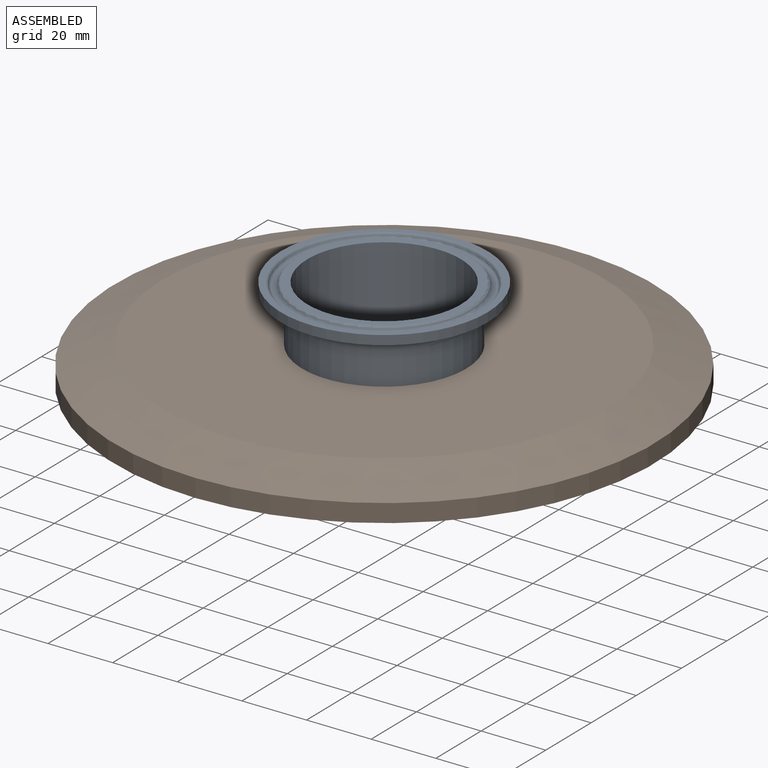
[diagram: assembled view]
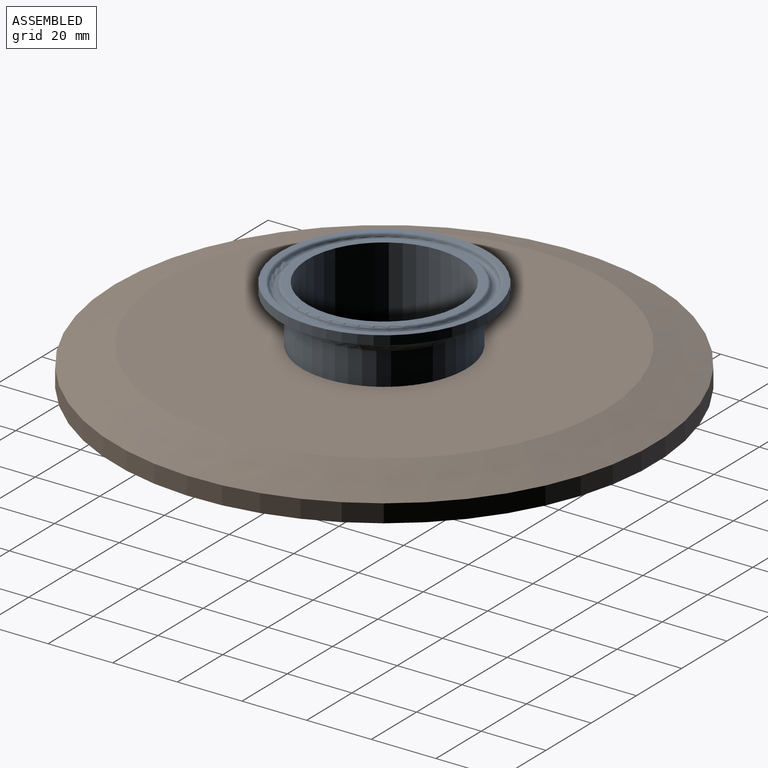
[diagram: assembled view, second angle]
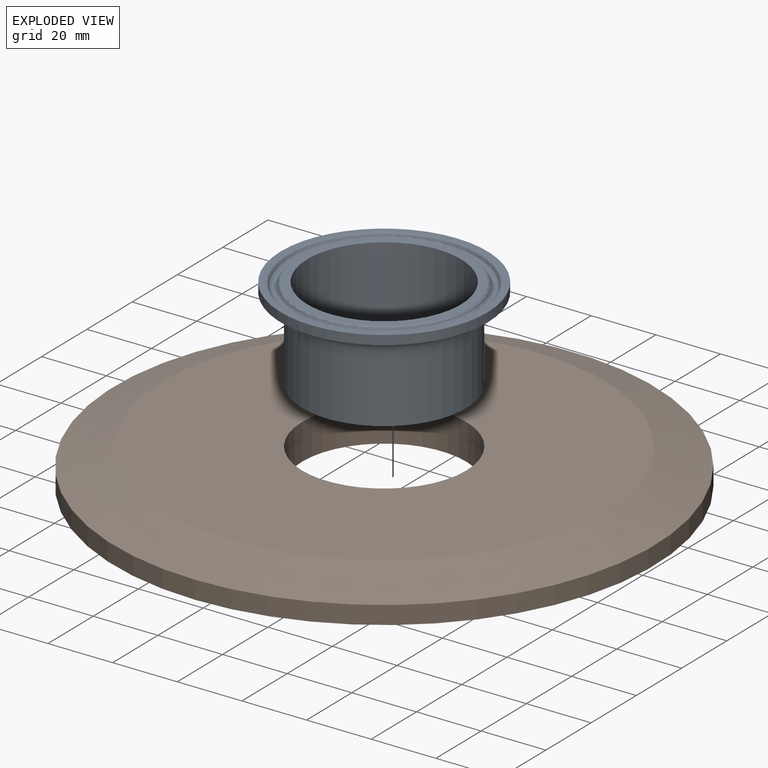
[diagram: exploded view]
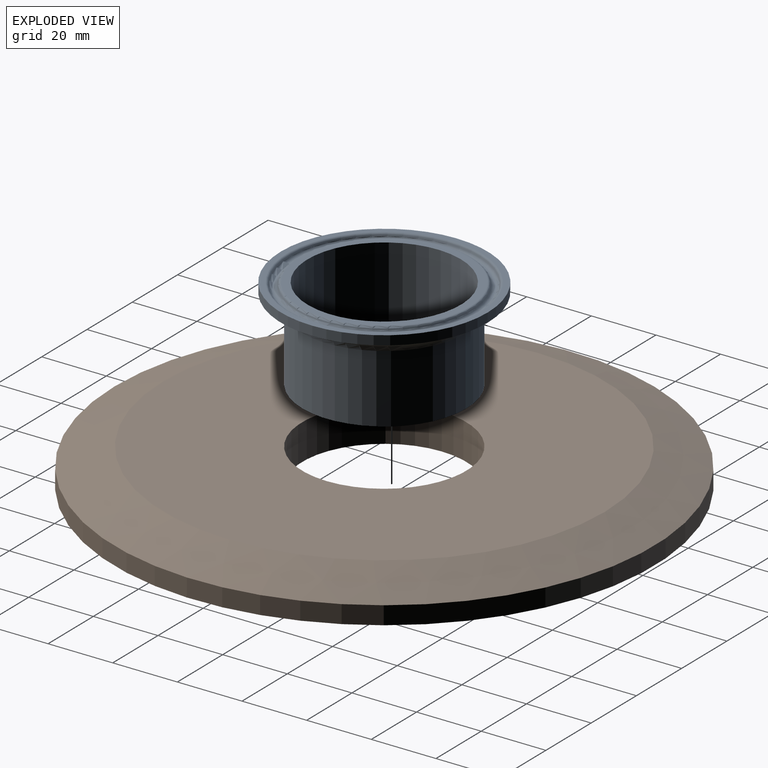
[diagram: exploded view, second angle]
ASSEMBLY  parts=2 mates=2
PART A: 13 faces, bbox 65.3x28.6x65.3 mm
  f0: plane 63.91x63.91mm, normal (0,-1,0), area 350.1mm2, adj f1,f12
  f1: torus R=30.16mm, axis (0,-1,0), area 172.1mm2, adj f0,f2
  f2: cone r=29.43mm half-angle=23deg, axis (0,-1,0), area 78.8mm2, adj f1,f3
  f3: torus R=28.17mm, axis (0,-1,0), area 494.2mm2, adj f2,f4
  f4: cone r=27.07mm half-angle=23deg, axis (0,1,0), area 72.4mm2, adj f3,f5
  f5: torus R=26.18mm, axis (0,-1,0), area 153.8mm2, adj f4,f6
  f6: plane 52.36x52.36mm, normal (0,-1,0), area 381mm2, adj f5,f7
  f7: cylinder r=23.75mm len=47.5mm, axis (0,-1,0), area 4263.9mm2, adj f6,f8
  f8: plane 50.8x50.8mm, normal (0,1,0), area 254.9mm2, adj f7,f9
  f9: cylinder r=25.4mm len=50.8mm, axis (0,-1,0), area 3370.9mm2, adj f8,f10
  f10: torus R=28.57mm, axis (0,-1,0), area 636.9mm2, adj f9,f11
  f11: cone r=27.49mm half-angle=70deg, axis (0,-1,0), area 887.1mm2, adj f10,f12
  f12: cylinder r=31.95mm len=63.91mm, axis (0,-1,0), area 571.1mm2, adj f0,f11
PART B: 11 faces, bbox 174.1x11.1x174.1 mm
  f0: plane 136.59x136.59mm, normal (0,1,0), area 12626.4mm2, adj f1,f10
  f1: cone r=68.3mm half-angle=70deg, axis (0,-1,0), area 7682mm2, adj f0,f2
  f2: cylinder r=83.44mm len=166.88mm, axis (0,-1,0), area 2929.6mm2, adj f1,f3
  f3: plane 166.88x166.88mm, normal (0,-1,0), area 1551.2mm2, adj f2,f4
  f4: torus R=80.43mm, axis (0,-1,0), area 462.9mm2, adj f3,f5
  f5: cone r=79.7mm half-angle=23deg, axis (0,-1,0), area 213.6mm2, adj f4,f6
  f6: torus R=78.44mm, axis (0,-1,0), area 1376mm2, adj f5,f7
  f7: cone r=77.34mm half-angle=23deg, axis (0,1,0), area 207.3mm2, adj f6,f8
  f8: torus R=76.44mm, axis (0,-1,0), area 444.6mm2, adj f7,f9
  f9: plane 152.89x152.89mm, normal (0,-1,0), area 16332mm2, adj f8,f10
  f10: cylinder r=25.4mm len=50.8mm, axis (0,1,0), area 1771.4mm2, adj f0,f9
PLACE A rot(axis=(-0.86,0.36,-0.36),98.4deg) t=(0,0,28.58)mm
PLACE B rot(axis=(0.58,-0.58,-0.58),120deg) t=(0,0,0)mm
MATE planar A.f1 <-> B.f1  axis (0,0,-1) through (0,0,0)mm
MATE cylindrical A.f1 <-> B.f10  axis (0,0,1) through (0,0,10.56)mm
